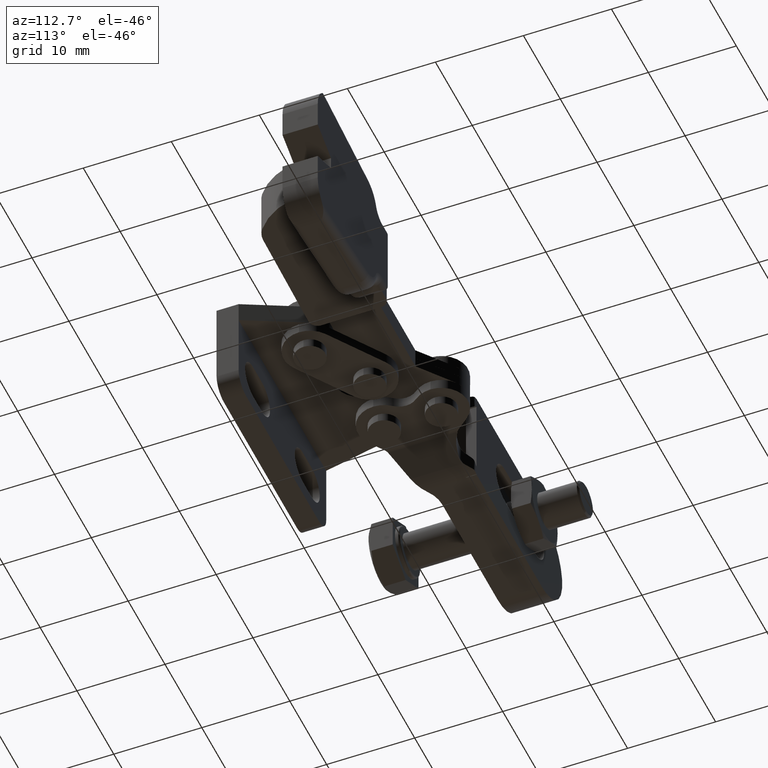
[diagram: clean part render]
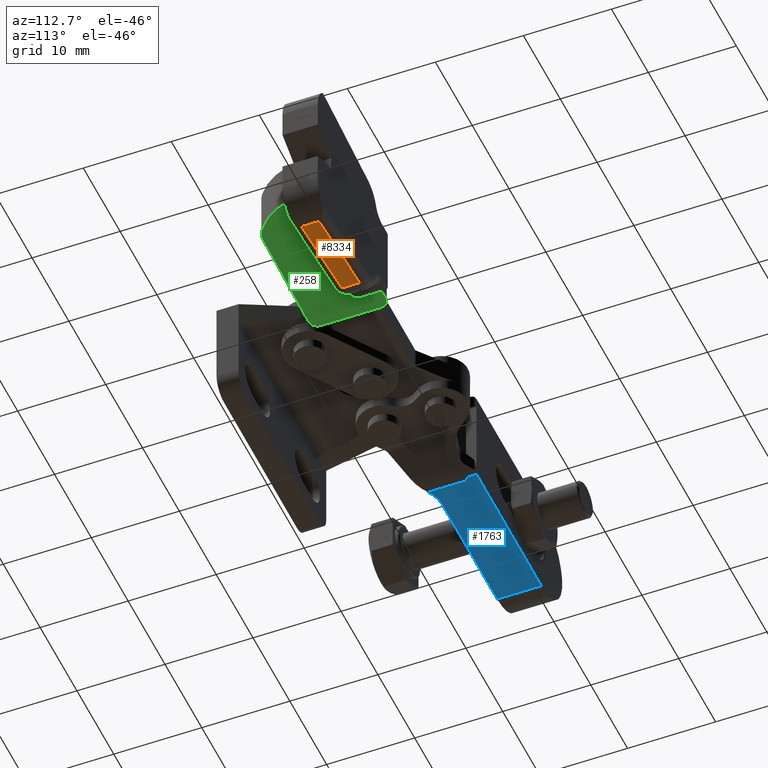
[diagram: same view with three faces highlighted in distinct colors, each labeled with its STEP entity id]
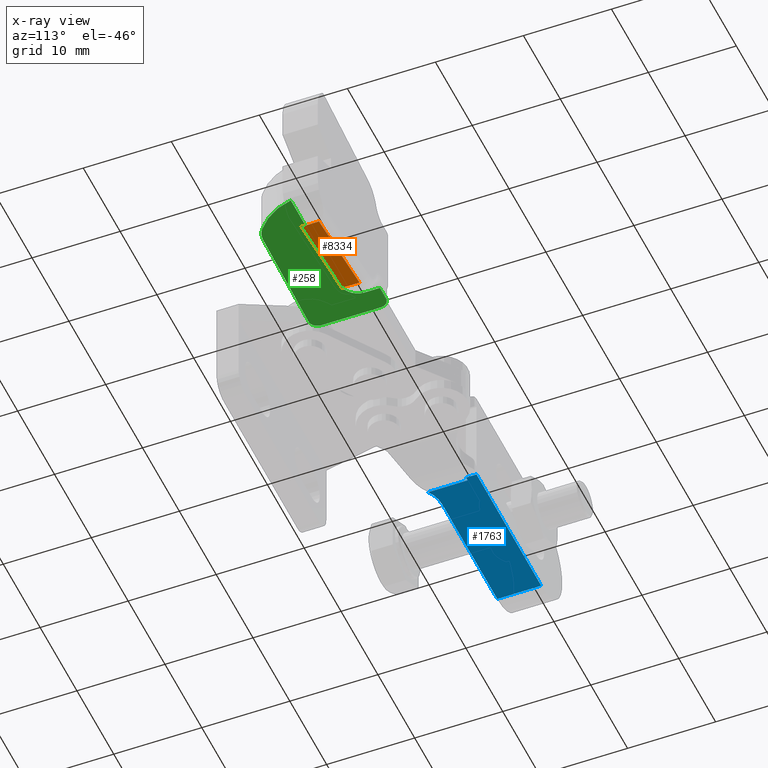
[diagram: x-ray of the same camera — body ghosted, the three highlighted faces saturated]
A machine part, auxiliary view with three faces highlighted in distinct colors.
The next image is the same camera in x-ray (body ghosted, the three faces saturated) — at least one of them is partly hidden behind the body in this view.
Their STEP definitions:

[orange] entity #8334 — the highlighted planar face has unit normal (-0.1168, -0, -0.9932).
#116 = CARTESIAN_POINT ( 'NONE',  ( 40.91897119041122000, 18.80010910463322600, -9.192857109679428300 ) ) ;
#165 = EDGE_CURVE ( 'NONE', #6932, #5606, #2678, .T. ) ;
#269 = ORIENTED_EDGE ( 'NONE', *, *, #8091, .F. ) ;
#1001 = ORIENTED_EDGE ( 'NONE', *, *, #2513, .T. ) ;
#2039 = LINE ( 'NONE', #6919, #7835 ) ;
#2050 = PLANE ( 'NONE',  #3618 ) ;
#2166 = DIRECTION ( 'NONE',  ( -0.9931506043185482900, -2.931784242392111300E-006, 0.1168412475674016200 ) ) ;
#2513 = EDGE_CURVE ( 'NONE', #5452, #8067, #9696, .T. ) ;
#2678 = LINE ( 'NONE', #3419, #3456 ) ;
#2693 = EDGE_CURVE ( 'NONE', #5606, #5452, #7134, .T. ) ;
#2784 = DIRECTION ( 'NONE',  ( -0.1168412475668925400, -3.449157967158925400E-007, -0.9931506043228757200 ) ) ;
#2849 = VECTOR ( 'NONE', #6189, 1000.000000000000100 ) ;
#3419 = CARTESIAN_POINT ( 'NONE',  ( 29.90868823643829400, 16.80007660222867100, -7.897529008734862200 ) ) ;
#3435 = CARTESIAN_POINT ( 'NONE',  ( 10.78019728641592500, 15.80002013484856400, -5.647117961427785100 ) ) ;
#3456 = VECTOR ( 'NONE', #2166, 1000.000000000000200 ) ;
#3618 = AXIS2_PLACEMENT_3D ( 'NONE', #3435, #2784, #8093 ) ;
#3864 = ORIENTED_EDGE ( 'NONE', *, *, #2693, .T. ) ;
#4095 = DIRECTION ( 'NONE',  ( 0.9931506043185482900, 2.931784242392111300E-006, -0.1168412475674016200 ) ) ;
#4675 = FACE_OUTER_BOUND ( 'NONE', #8884, .T. ) ;
#5372 = DIRECTION ( 'NONE',  ( -2.952003684069184500E-006, 0.9999999999956428200, -3.462431052187103800E-015 ) ) ;
#5452 = VERTEX_POINT ( 'NONE', #5642 ) ;
#5544 = VECTOR ( 'NONE', #4095, 1000.000000000000200 ) ;
#5606 = VERTEX_POINT ( 'NONE', #7387 ) ;
#5642 = CARTESIAN_POINT ( 'NONE',  ( 29.90868233243091700, 18.80007660221995600, -7.897529008734867500 ) ) ;
#6004 = CARTESIAN_POINT ( 'NONE',  ( 29.90869118844197100, 15.80007660223302700, -7.897529008734856900 ) ) ;
#6189 = DIRECTION ( 'NONE',  ( -2.952003684069184500E-006, 0.9999999999956428200, -3.469446951953613400E-015 ) ) ;
#6204 = CARTESIAN_POINT ( 'NONE',  ( 40.91897709441859400, 16.80010910464193700, -9.192857109679421200 ) ) ;
#6919 = CARTESIAN_POINT ( 'NONE',  ( 40.91899775844437700, 9.800109104672436900, -9.192857109679396300 ) ) ;
#6932 = VERTEX_POINT ( 'NONE', #6204 ) ;
#7134 = LINE ( 'NONE', #6004, #2849 ) ;
#7387 = CARTESIAN_POINT ( 'NONE',  ( 29.90868823643828700, 16.80007660222867100, -7.897529008734860400 ) ) ;
#7835 = VECTOR ( 'NONE', #5372, 1000.000000000000100 ) ;
#7950 = CARTESIAN_POINT ( 'NONE',  ( 10.78018843040487300, 18.80002013483549600, -5.647117961427794900 ) ) ;
#8067 = VERTEX_POINT ( 'NONE', #116 ) ;
#8091 = EDGE_CURVE ( 'NONE', #6932, #8067, #2039, .T. ) ;
#8093 = DIRECTION ( 'NONE',  ( -0.9931506043185482900, -2.931784242796666100E-006, 0.1168412475674016200 ) ) ;
#8334 = ADVANCED_FACE ( 'NONE', ( #4675 ), #2050, .T. ) ;
#8884 = EDGE_LOOP ( 'NONE', ( #269, #9071, #3864, #1001 ) ) ;
#9071 = ORIENTED_EDGE ( 'NONE', *, *, #165, .T. ) ;
#9696 = LINE ( 'NONE', #7950, #5544 ) ;

[blue] entity #1763 — the highlighted planar face has unit normal (0, 0, 1).
#361 = ORIENTED_EDGE ( 'NONE', *, *, #1791, .F. ) ;
#751 = LINE ( 'NONE', #9599, #8559 ) ;
#754 = CARTESIAN_POINT ( 'NONE',  ( -5.226469389383567900, 13.50000245742339000, -5.699999999999998400 ) ) ;
#781 = DIRECTION ( 'NONE',  ( 1.000000000000000000, 0.0000000000000000000, 0.0000000000000000000 ) ) ;
#801 = DIRECTION ( 'NONE',  ( -1.000000000000000000, 0.0000000000000000000, 0.0000000000000000000 ) ) ;
#816 = DIRECTION ( 'NONE',  ( -0.0000000000000000000, -0.0000000000000000000, -1.000000000000000000 ) ) ;
#838 = CARTESIAN_POINT ( 'NONE',  ( -5.226469389383567900, 9.500002457423374100, -5.699999999999998400 ) ) ;
#1055 = CARTESIAN_POINT ( 'NONE',  ( -24.14000245664014000, 18.50000245742332800, -5.699999999999998400 ) ) ;
#1066 = ORIENTED_EDGE ( 'NONE', *, *, #2182, .T. ) ;
#1166 = VERTEX_POINT ( 'NONE', #6513 ) ;
#1234 = VERTEX_POINT ( 'NONE', #2767 ) ;
#1444 = DIRECTION ( 'NONE',  ( -0.0000000000000000000, -1.000000000000000000, -0.0000000000000000000 ) ) ;
#1489 = AXIS2_PLACEMENT_3D ( 'NONE', #838, #816, #781 ) ;
#1585 = LINE ( 'NONE', #1055, #7360 ) ;
#1692 = EDGE_LOOP ( 'NONE', ( #4376, #7454, #5887, #8411, #1066, #361, #7205 ) ) ;
#1763 = ADVANCED_FACE ( 'NONE', ( #3442 ), #4498, .F. ) ;
#1791 = EDGE_CURVE ( 'NONE', #7956, #1166, #8467, .T. ) ;
#1983 = DIRECTION ( 'NONE',  ( 1.000000000000000000, 0.0000000000000000000, 0.0000000000000000000 ) ) ;
#2015 = CARTESIAN_POINT ( 'NONE',  ( -2.563228186422624500, 17.30000245742332200, -5.699999999999998400 ) ) ;
#2182 = EDGE_CURVE ( 'NONE', #4695, #1166, #9446, .T. ) ;
#2563 = EDGE_CURVE ( 'NONE', #1234, #6715, #1585, .T. ) ;
#2731 = DIRECTION ( 'NONE',  ( 1.000000000000000000, 3.234949128180488800E-015, 0.0000000000000000000 ) ) ;
#2767 = CARTESIAN_POINT ( 'NONE',  ( -2.563228186422624500, 18.50000245742331000, -5.699999999999998400 ) ) ;
#3113 = DIRECTION ( 'NONE',  ( 1.000000000000000000, 0.0000000000000000000, -1.517691524187744500E-016 ) ) ;
#3223 = DIRECTION ( 'NONE',  ( 1.517691524187744500E-016, -0.0000000000000000000, 1.000000000000000000 ) ) ;
#3315 = CARTESIAN_POINT ( 'NONE',  ( -20.14000145548620300, 13.50000245742334000, -5.699999999999996600 ) ) ;
#3442 = FACE_OUTER_BOUND ( 'NONE', #1692, .T. ) ;
#3488 = VERTEX_POINT ( 'NONE', #3315 ) ;
#3500 = CARTESIAN_POINT ( 'NONE',  ( -2.994981057761938500, 21.45606182658943700, -5.699999999999998400 ) ) ;
#3535 = CARTESIAN_POINT ( 'NONE',  ( -2.563228186422624500, -2.658308531326140800, -5.699999999999998400 ) ) ;
#3643 = VECTOR ( 'NONE', #1444, 1000.000000000000000 ) ;
#3860 = VECTOR ( 'NONE', #7388, 1000.000000000000000 ) ;
#4309 = CARTESIAN_POINT ( 'NONE',  ( -20.14000145548620300, 21.45606182658943700, -5.699999999999997500 ) ) ;
#4376 = ORIENTED_EDGE ( 'NONE', *, *, #7227, .F. ) ;
#4498 = PLANE ( 'NONE',  #7230 ) ;
#4610 = VECTOR ( 'NONE', #2731, 1000.000000000000000 ) ;
#4695 = VERTEX_POINT ( 'NONE', #6823 ) ;
#5531 = VECTOR ( 'NONE', #9680, 1000.000000000000000 ) ;
#5541 = EDGE_CURVE ( 'NONE', #3488, #7956, #8732, .T. ) ;
#5688 = LINE ( 'NONE', #8191, #3643 ) ;
#5887 = ORIENTED_EDGE ( 'NONE', *, *, #7167, .T. ) ;
#6173 = LINE ( 'NONE', #3535, #3860 ) ;
#6513 = CARTESIAN_POINT ( 'NONE',  ( -2.994981057761938500, 12.81971024966000900, -5.699999999999998400 ) ) ;
#6631 = CARTESIAN_POINT ( 'NONE',  ( -20.14000145548621700, 18.50000245742332100, -5.699999999999998400 ) ) ;
#6715 = VERTEX_POINT ( 'NONE', #6631 ) ;
#6823 = CARTESIAN_POINT ( 'NONE',  ( -2.994981057761938500, 17.30000245742332200, -5.699999999999998400 ) ) ;
#7087 = VERTEX_POINT ( 'NONE', #2015 ) ;
#7167 = EDGE_CURVE ( 'NONE', #1234, #7087, #6173, .T. ) ;
#7205 = ORIENTED_EDGE ( 'NONE', *, *, #5541, .F. ) ;
#7227 = EDGE_CURVE ( 'NONE', #6715, #3488, #5688, .T. ) ;
#7230 = AXIS2_PLACEMENT_3D ( 'NONE', #4309, #3223, #3113 ) ;
#7360 = VECTOR ( 'NONE', #801, 1000.000000000000000 ) ;
#7388 = DIRECTION ( 'NONE',  ( 0.0000000000000000000, -1.000000000000000000, 0.0000000000000000000 ) ) ;
#7454 = ORIENTED_EDGE ( 'NONE', *, *, #2563, .F. ) ;
#7956 = VERTEX_POINT ( 'NONE', #754 ) ;
#8191 = CARTESIAN_POINT ( 'NONE',  ( -20.14000145548620300, 21.45606182658943700, -5.699999999999997500 ) ) ;
#8303 = EDGE_CURVE ( 'NONE', #4695, #7087, #751, .T. ) ;
#8411 = ORIENTED_EDGE ( 'NONE', *, *, #8303, .F. ) ;
#8467 = CIRCLE ( 'NONE', #1489, 4.000000000000016000 ) ;
#8559 = VECTOR ( 'NONE', #1983, 1000.000000000000000 ) ;
#8732 = LINE ( 'NONE', #9626, #4610 ) ;
#9446 = LINE ( 'NONE', #3500, #5531 ) ;
#9599 = CARTESIAN_POINT ( 'NONE',  ( -13.98654398031854000, 17.30000245742332200, -5.699999999999998400 ) ) ;
#9626 = CARTESIAN_POINT ( 'NONE',  ( -26.14000245664014000, 13.50000245742332300, -5.699999999999998400 ) ) ;
#9680 = DIRECTION ( 'NONE',  ( -0.0000000000000000000, -1.000000000000000000, -0.0000000000000000000 ) ) ;

[green] entity #258 — the highlighted planar face has unit normal (0, 0, 1).
#48 = EDGE_CURVE ( 'NONE', #2729, #9310, #9305, .T. ) ;
#49 = CARTESIAN_POINT ( 'NONE',  ( 20.99219276893856500, 18.50005028070864200, -2.600000000000001900 ) ) ;
#72 = AXIS2_PLACEMENT_3D ( 'NONE', #2633, #1586, #4975 ) ;
#76 = LINE ( 'NONE', #7615, #5593 ) ;
#258 = ADVANCED_FACE ( 'NONE', ( #2081 ), #7508, .F. ) ;
#272 = CARTESIAN_POINT ( 'NONE',  ( 22.00779540158976000, 9.695649417362940200, -2.600000000000001900 ) ) ;
#276 = VERTEX_POINT ( 'NONE', #8139 ) ;
#306 = LINE ( 'NONE', #3375, #1845 ) ;
#432 = VERTEX_POINT ( 'NONE', #4190 ) ;
#659 = ORIENTED_EDGE ( 'NONE', *, *, #8033, .F. ) ;
#660 = CIRCLE ( 'NONE', #3637, 2.500000000000001300 ) ;
#702 = CARTESIAN_POINT ( 'NONE',  ( 36.31755086034198900, 10.42009951188046000, -2.600000000000001900 ) ) ;
#768 = LINE ( 'NONE', #2603, #8571 ) ;
#773 = EDGE_CURVE ( 'NONE', #3248, #4287, #1550, .T. ) ;
#817 = DIRECTION ( 'NONE',  ( 2.952003684069184500E-006, -0.9999999999956428200, -0.0000000000000000000 ) ) ;
#866 = ORIENTED_EDGE ( 'NONE', *, *, #9393, .T. ) ;
#875 = DIRECTION ( 'NONE',  ( -0.0000000000000000000, -0.0000000000000000000, -1.000000000000000000 ) ) ;
#957 = EDGE_CURVE ( 'NONE', #2729, #9665, #3948, .T. ) ;
#1036 = CARTESIAN_POINT ( 'NONE',  ( 25.64798475125412500, 14.80006402460758400, -2.600000000000001900 ) ) ;
#1550 = CIRCLE ( 'NONE', #3664, 7.374754855913669100 ) ;
#1586 = DIRECTION ( 'NONE',  ( 0.0000000000000000000, -0.0000000000000000000, 1.000000000000000000 ) ) ;
#1651 = EDGE_CURVE ( 'NONE', #2491, #432, #7661, .T. ) ;
#1777 = CARTESIAN_POINT ( 'NONE',  ( 20.99221880627542100, 9.679825226098765600, -2.600000000000001900 ) ) ;
#1814 = ORIENTED_EDGE ( 'NONE', *, *, #6379, .F. ) ;
#1845 = VECTOR ( 'NONE', #6476, 1000.000000000000100 ) ;
#2008 = VERTEX_POINT ( 'NONE', #5838 ) ;
#2081 = FACE_OUTER_BOUND ( 'NONE', #7585, .T. ) ;
#2312 = EDGE_CURVE ( 'NONE', #4839, #4287, #768, .T. ) ;
#2491 = VERTEX_POINT ( 'NONE', #3428 ) ;
#2603 = CARTESIAN_POINT ( 'NONE',  ( 39.15794979506279100, 14.80010390607416700, -2.600000000000001900 ) ) ;
#2633 = CARTESIAN_POINT ( 'NONE',  ( 34.78470199004225800, 12.39503605284091300, -2.600000000000001900 ) ) ;
#2653 = AXIS2_PLACEMENT_3D ( 'NONE', #7059, #7210, #7123 ) ;
#2729 = VERTEX_POINT ( 'NONE', #272 ) ;
#3155 = VECTOR ( 'NONE', #8734, 1000.000000000000100 ) ;
#3225 = ORIENTED_EDGE ( 'NONE', *, *, #48, .F. ) ;
#3248 = VERTEX_POINT ( 'NONE', #702 ) ;
#3375 = CARTESIAN_POINT ( 'NONE',  ( 24.64797382884485100, 18.50006107258779800, -2.600000000000001900 ) ) ;
#3428 = CARTESIAN_POINT ( 'NONE',  ( 20.99219572094225200, 17.50005028071299800, -2.600000000000001900 ) ) ;
#3619 = DIRECTION ( 'NONE',  ( 0.9999999999956428200, 2.952003684900116200E-006, 0.0000000000000000000 ) ) ;
#3637 = AXIS2_PLACEMENT_3D ( 'NONE', #8423, #3809, #9248 ) ;
#3664 = AXIS2_PLACEMENT_3D ( 'NONE', #4608, #9284, #3847 ) ;
#3694 = ORIENTED_EDGE ( 'NONE', *, *, #5474, .F. ) ;
#3761 = CARTESIAN_POINT ( 'NONE',  ( 39.02742774414829100, 14.80010352077259100, -2.600000000000001900 ) ) ;
#3809 = DIRECTION ( 'NONE',  ( 0.0000000000000000000, 0.0000000000000000000, 1.000000000000000000 ) ) ;
#3847 = DIRECTION ( 'NONE',  ( 0.9999999999956429300, 2.952003684150619100E-006, 0.0000000000000000000 ) ) ;
#3948 = CIRCLE ( 'NONE', #9255, 1.000000000000000400 ) ;
#4190 = CARTESIAN_POINT ( 'NONE',  ( 21.99219276893421000, 18.50005323271232500, -2.600000000000001900 ) ) ;
#4287 = VERTEX_POINT ( 'NONE', #3761 ) ;
#4380 = CARTESIAN_POINT ( 'NONE',  ( 21.99221580792130500, 10.69552804812825800, -2.600000000000001900 ) ) ;
#4608 = CARTESIAN_POINT ( 'NONE',  ( 31.79579700049208700, 16.24596865010822500, -2.600000000000001900 ) ) ;
#4839 = VERTEX_POINT ( 'NONE', #1036 ) ;
#4915 = VECTOR ( 'NONE', #6105, 1000.000000000000100 ) ;
#4975 = DIRECTION ( 'NONE',  ( 0.9999999999956428200, 2.952003684069184500E-006, 0.0000000000000000000 ) ) ;
#5215 = ORIENTED_EDGE ( 'NONE', *, *, #5812, .F. ) ;
#5317 = CARTESIAN_POINT ( 'NONE',  ( 25.64797884724675500, 16.80006402459887100, -2.600000000000001900 ) ) ;
#5397 = ORIENTED_EDGE ( 'NONE', *, *, #1651, .T. ) ;
#5474 = EDGE_CURVE ( 'NONE', #2008, #432, #306, .T. ) ;
#5593 = VECTOR ( 'NONE', #817, 1000.000000000000100 ) ;
#5812 = EDGE_CURVE ( 'NONE', #4839, #276, #8102, .T. ) ;
#5838 = CARTESIAN_POINT ( 'NONE',  ( 23.64797382884920700, 18.50005812058411400, -2.600000000000001900 ) ) ;
#6105 = DIRECTION ( 'NONE',  ( 2.952003683872508900E-006, -0.9999999999956428200, 0.0000000000000000000 ) ) ;
#6129 = DIRECTION ( 'NONE',  ( 0.9999999999956428200, 2.952003684900116200E-006, 0.0000000000000000000 ) ) ;
#6379 = EDGE_CURVE ( 'NONE', #9310, #3248, #660, .T. ) ;
#6476 = DIRECTION ( 'NONE',  ( -0.9999999999956428200, -2.952003684069184500E-006, 0.0000000000000000000 ) ) ;
#6483 = DIRECTION ( 'NONE',  ( 0.9999999999956428200, 2.952003684069184500E-006, -0.0000000000000000000 ) ) ;
#6547 = LINE ( 'NONE', #49, #4915 ) ;
#7059 = CARTESIAN_POINT ( 'NONE',  ( 21.99219572093789300, 17.50005323271668100, -2.600000000000001900 ) ) ;
#7123 = DIRECTION ( 'NONE',  ( 0.9999999999956428200, 2.952003683165392700E-006, 0.0000000000000000000 ) ) ;
#7210 = DIRECTION ( 'NONE',  ( -0.0000000000000000000, -0.0000000000000000000, -1.000000000000000000 ) ) ;
#7508 = PLANE ( 'NONE',  #72 ) ;
#7585 = EDGE_LOOP ( 'NONE', ( #5215, #9661, #8976, #1814, #3225, #8049, #659, #5397, #3694, #866 ) ) ;
#7615 = CARTESIAN_POINT ( 'NONE',  ( 23.64799185099389300, 12.39500317723155500, -2.600000000000001900 ) ) ;
#7661 = CIRCLE ( 'NONE', #2653, 1.000000000000000400 ) ;
#8033 = EDGE_CURVE ( 'NONE', #2491, #9665, #6547, .T. ) ;
#8049 = ORIENTED_EDGE ( 'NONE', *, *, #957, .T. ) ;
#8102 = CIRCLE ( 'NONE', #8340, 2.000000000000000900 ) ;
#8139 = CARTESIAN_POINT ( 'NONE',  ( 23.64797884725547300, 16.80005812059150100, -2.600000000000001900 ) ) ;
#8227 = CARTESIAN_POINT ( 'NONE',  ( 34.82365097421340700, 9.895339475927619000, -2.600000000000001900 ) ) ;
#8340 = AXIS2_PLACEMENT_3D ( 'NONE', #5317, #875, #6129 ) ;
#8423 = CARTESIAN_POINT ( 'NONE',  ( 34.78470199004225800, 12.39503605284091300, -2.600000000000001900 ) ) ;
#8571 = VECTOR ( 'NONE', #6483, 1000.000000000000100 ) ;
#8713 = CARTESIAN_POINT ( 'NONE',  ( 20.99221580792566400, 10.69552509612457500, -2.600000000000001900 ) ) ;
#8734 = DIRECTION ( 'NONE',  ( 0.9998786307653173600, 0.01557959366845628800, 0.0000000000000000000 ) ) ;
#8976 = ORIENTED_EDGE ( 'NONE', *, *, #773, .F. ) ;
#9035 = DIRECTION ( 'NONE',  ( -0.0000000000000000000, -0.0000000000000000000, -1.000000000000000000 ) ) ;
#9248 = DIRECTION ( 'NONE',  ( 0.9999999999956428200, 2.952003683859281700E-006, 0.0000000000000000000 ) ) ;
#9255 = AXIS2_PLACEMENT_3D ( 'NONE', #4380, #9035, #3619 ) ;
#9284 = DIRECTION ( 'NONE',  ( 0.0000000000000000000, 0.0000000000000000000, 1.000000000000000000 ) ) ;
#9305 = LINE ( 'NONE', #1777, #3155 ) ;
#9310 = VERTEX_POINT ( 'NONE', #8227 ) ;
#9393 = EDGE_CURVE ( 'NONE', #2008, #276, #76, .T. ) ;
#9661 = ORIENTED_EDGE ( 'NONE', *, *, #2312, .T. ) ;
#9665 = VERTEX_POINT ( 'NONE', #8713 ) ;